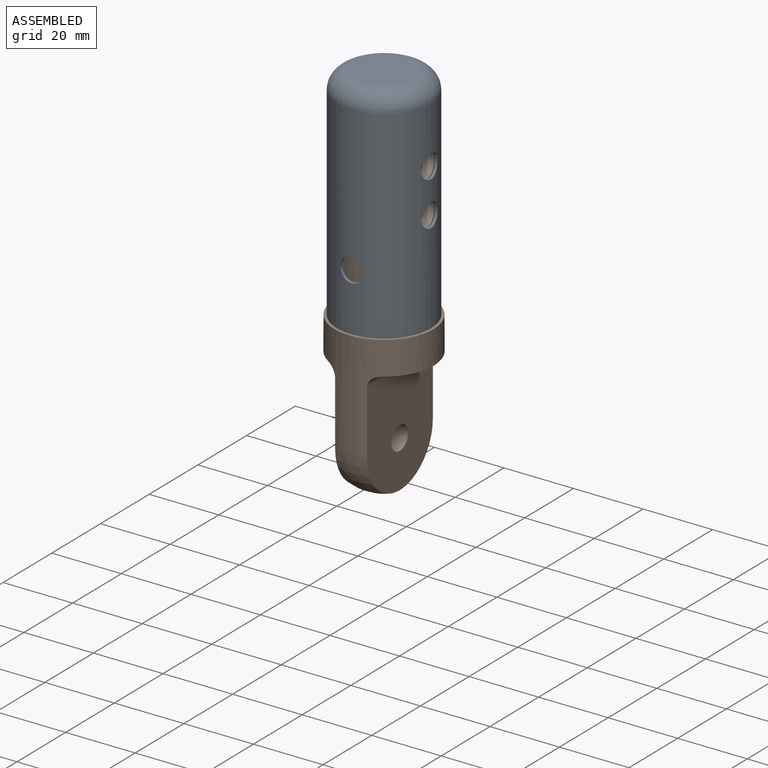
[diagram: assembled view]
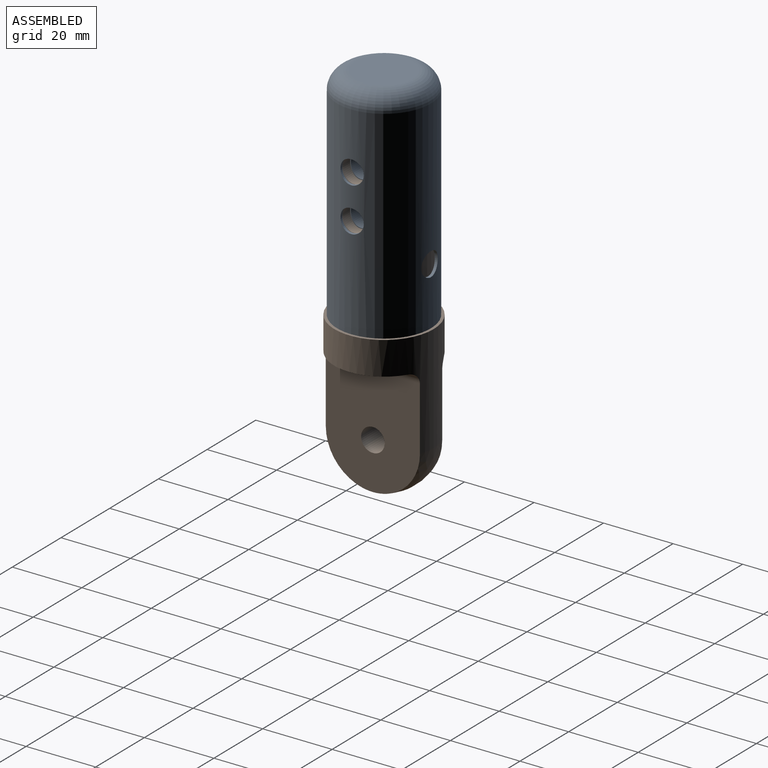
[diagram: assembled view, second angle]
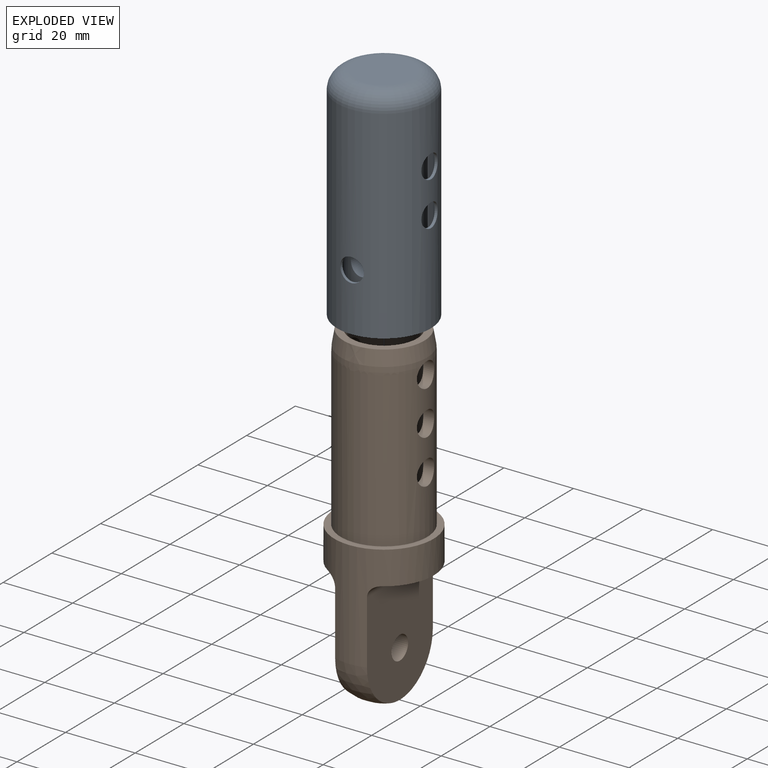
[diagram: exploded view]
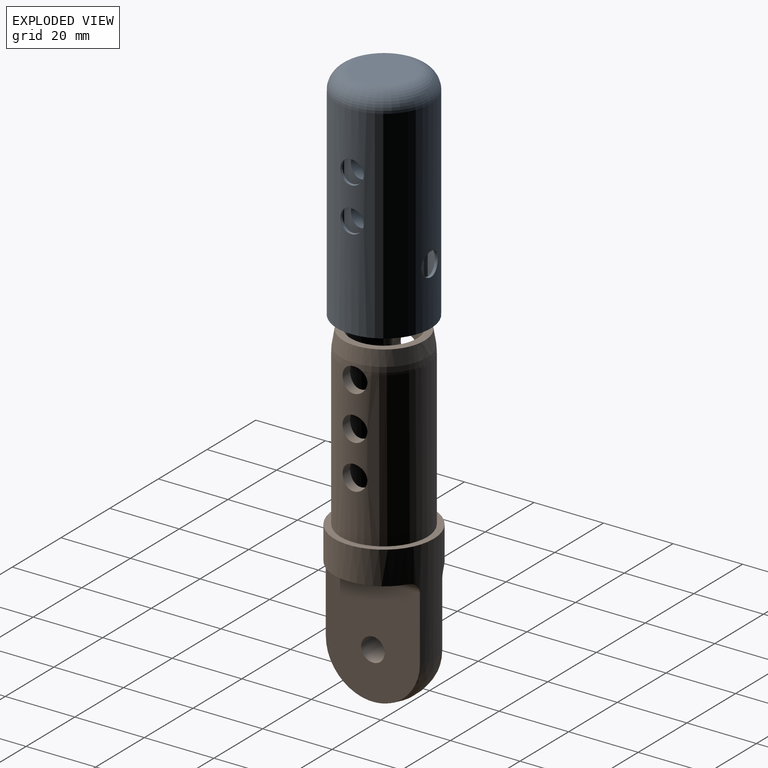
[diagram: exploded view, second angle]
ASSEMBLY  parts=2 mates=2
PART A: 33 faces, bbox 29.2x29.2x63.5 mm
  f0: plane 48.46x11.11mm, normal (1,0,0), area 284.3mm2, adj f5,f11,f12,f17,f18,f19,f29,f30
  f1: plane 48.46x11.11mm, normal (-1,0,0), area 284.3mm2, adj f5,f6,f7,f17,f18,f19,f25,f26
  f2: cylinder r=12.7mm len=57.15mm, axis (0,0,1), area 4343.6mm2, adj f8,f10,f13,f14,f15,f16,f23,f24
  f3: cylinder r=13.5mm len=58.42mm, axis (0,0,1), area 4738.8mm2, adj f8,f13,f14,f15,f16,f20,f23,f24
  f4: cylinder r=9.4mm len=57.15mm, axis (0,0,1), area 3156.3mm2, adj f5,f6,f7,f10,f11,f12,f21,f22
  f5: plane 18.8x18.8mm, normal (0,0,1), area 164.1mm2, adj f0,f1,f4,f17,f18,f26,f27,f28
  f6: cylinder r=3.37mm len=6.73mm, axis (1,0,0), area 108.3mm2, adj f1,f4
  f7: cylinder r=3.37mm len=6.73mm, axis (1,0,0), area 108.3mm2, adj f1,f4
  f8: plane 27x27mm, normal (0,0,1), area 65.8mm2, adj f2,f3
  f9: plane 16.84x16.84mm, normal (0,0,-1), area 222.7mm2, adj f20
  f10: plane 25.4x25.4mm, normal (0,0,1), area 229.2mm2, adj f2,f4
  f11: cylinder r=3.37mm len=6.73mm, axis (1,0,0), area 108.3mm2, adj f0,f4
  f12: cylinder r=3.37mm len=6.73mm, axis (1,0,0), area 108.3mm2, adj f0,f4
  f13: cylinder r=3.37mm len=6.73mm, axis (1,0,0), area 17.2mm2, adj f2,f3
  f14: cylinder r=3.37mm len=6.73mm, axis (1,0,0), area 17.2mm2, adj f2,f3
  f15: cylinder r=3.37mm len=6.73mm, axis (1,0,0), area 17.2mm2, adj f2,f3
  f16: cylinder r=3.37mm len=6.73mm, axis (1,0,0), area 17.2mm2, adj f2,f3
  f17: plane 48.46x7.94mm, normal (0,-1,0), area 348.6mm2, adj f0,f1,f5,f19,f22
  f18: plane 48.46x7.94mm, normal (0,1,0), area 348.6mm2, adj f0,f1,f5,f19,f21
  f19: plane 11.11x7.94mm, normal (0,0,1), area 88.2mm2, adj f0,f1,f17,f18
  f20: torus R=8.42mm, axis (0,0,-1), area 584.3mm2, adj f3,f9
  f21: cylinder r=3.39mm len=6.78mm, axis (0,1,0), area 75.2mm2, adj f4,f18
  f22: cylinder r=3.39mm len=6.78mm, axis (0,1,0), area 75.2mm2, adj f4,f17
  f23: cylinder r=3.39mm len=6.78mm, axis (0,1,0), area 17.3mm2, adj f2,f3
  f24: cylinder r=3.39mm len=6.78mm, axis (0,1,0), area 17.3mm2, adj f2,f3
  f25: plane 7.94x1.59mm, normal (0,0,1), area 12.6mm2, adj f1,f26,f27,f28
  f26: plane 23.06x1.59mm, normal (0,1,0), area 36.6mm2, adj f1,f5,f25,f28
  f27: plane 23.06x1.59mm, normal (0,-1,0), area 36.6mm2, adj f1,f5,f25,f28
  f28: plane 23.06x7.94mm, normal (-1,0,0), area 183.1mm2, adj f5,f25,f26,f27
  f29: plane 23.06x1.59mm, normal (0,-1,0), area 36.6mm2, adj f0,f5,f31,f32
  f30: plane 23.06x1.59mm, normal (0,1,0), area 36.6mm2, adj f0,f5,f31,f32
  f31: plane 7.94x1.59mm, normal (0,0,1), area 12.6mm2, adj f0,f29,f30,f32
  f32: plane 23.06x7.94mm, normal (1,0,0), area 183.1mm2, adj f5,f29,f30,f31
PART B: 25 faces, bbox 96x28.6x28.6 mm
  f0: cone r=0mm half-angle=67.5deg, axis (-1,0,0), area 308.5mm2, adj f2,f3
  f1: cylinder r=3.38mm len=9.14mm, axis (0,1,0), area 194.1mm2, adj f6,f9
  f2: cylinder r=9.53mm len=52.39mm, axis (1,0,0), area 1447.7mm2, adj f0,f3,f11,f19,f20,f21,f22,f23
  f3: cylinder r=9.53mm len=52.39mm, axis (1,0,0), area 1446.3mm2, adj f0,f2,f11,f19,f20,f21,f22,f23
  f4: plane 24.01x6.54mm, normal (1,0,0), area 110.7mm2, adj f5,f13
  f5: cylinder r=3.17mm len=27.07mm, axis (0,0,1), area 127.4mm2, adj f4,f6,f13
  f6: plane 31.72x27.07mm, normal (0,1,0), area 744.3mm2, adj f1,f5,f10,f13
  f7: plane 24.01x6.54mm, normal (1,0,0), area 110.7mm2, adj f8,f14
  f8: cylinder r=3.17mm len=27.07mm, axis (0,0,1), area 127.4mm2, adj f7,f9,f14
  f9: plane 31.72x27.07mm, normal (0,-1,0), area 744.3mm2, adj f1,f8,f10,f14
  f10: sphere r=14.29mm, area 410.4mm2, adj f6,f9,f13,f14
  f11: plane 23.28x23.28mm, normal (-1,0,0), area 141.3mm2, adj f2,f3,f12,f15
  f12: revolved ~24.89x12.45mm, area 240.5mm2, adj f11,f15,f16,f22
  f13: cylinder r=14.29mm len=30.89mm, axis (-1,0,0), area 631mm2, adj f4,f5,f6,f10,f14,f17
  f14: cylinder r=14.29mm len=30.89mm, axis (-1,0,0), area 631mm2, adj f7,f8,f9,f10,f13,f17
  f15: revolved ~24.89x12.45mm, area 240.5mm2, adj f11,f12,f18,f19
  f16: cylinder r=12.45mm len=44.45mm, axis (-1,0,0), area 1622.5mm2, adj f12,f17,f18,f22,f23,f24
  f17: plane 28.58x28.58mm, normal (-1,0,0), area 154.7mm2, adj f13,f14,f16,f18
  f18: cylinder r=12.45mm len=44.45mm, axis (-1,0,0), area 1622.6mm2, adj f15,f16,f17,f19,f20,f21
  f19: cylinder r=3.56mm len=7.11mm, axis (0,-1,0), area 64.5mm2, adj f2,f3,f15,f18
  f20: cylinder r=3.56mm len=7.11mm, axis (0,-1,0), area 61.3mm2, adj f2,f3,f18
  f21: cylinder r=3.56mm len=7.11mm, axis (0,-1,0), area 61.3mm2, adj f2,f3,f18
  f22: cylinder r=3.56mm len=7.11mm, axis (0,-1,0), area 64.5mm2, adj f2,f3,f12,f16
  f23: cylinder r=3.56mm len=7.11mm, axis (0,-1,0), area 61.3mm2, adj f2,f3,f16
  f24: cylinder r=3.56mm len=7.11mm, axis (0,-1,0), area 61.3mm2, adj f2,f3,f16
PLACE A rot(axis=(1,0,0),180deg) t=(-47.44,-24.3,-54.96)mm
PLACE B rot(axis=(-0.58,0.58,0.58),120deg) t=(-11.59,31.26,-83.48)mm
MATE planar B.f0 <-> A.f2  axis (0,0,1) through (-47.44,-24.3,-70.73)mm
MATE cylindrical B.f0 <-> A.f2  axis (0,0,1) through (-47.44,-24.3,-70.73)mm
